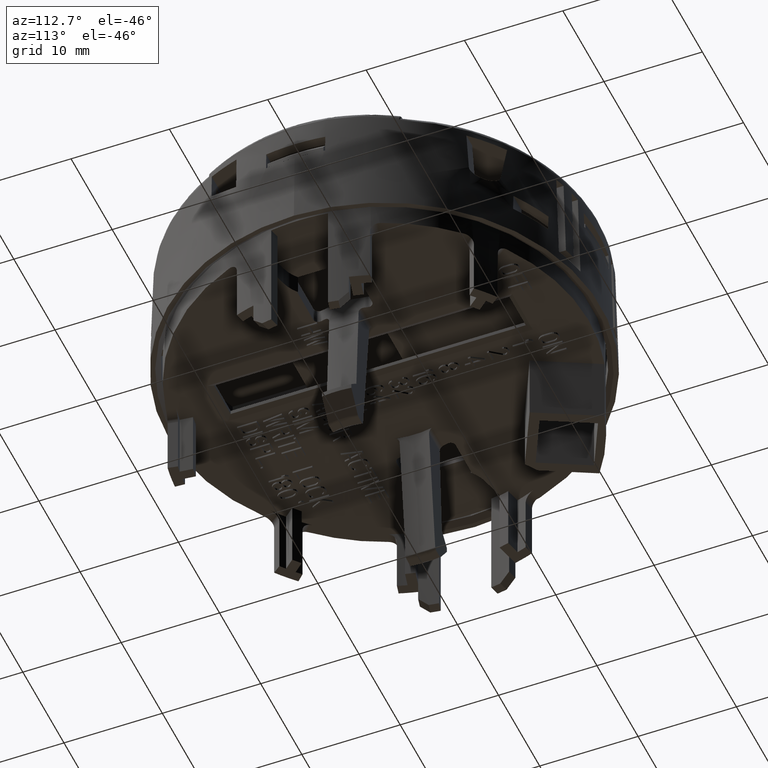
[diagram: clean part render]
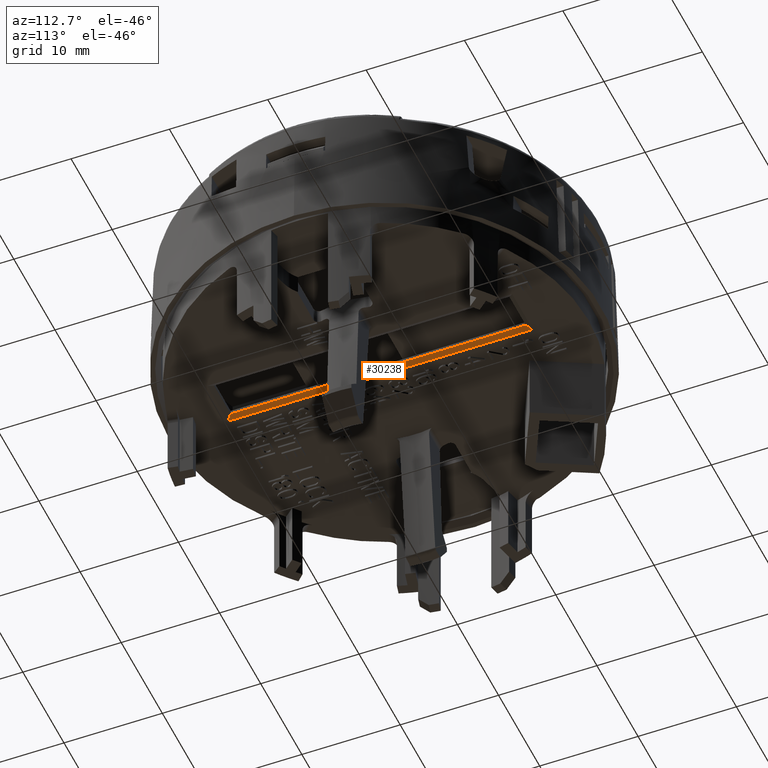
[diagram: same view with one face highlighted and labeled with its STEP entity id]
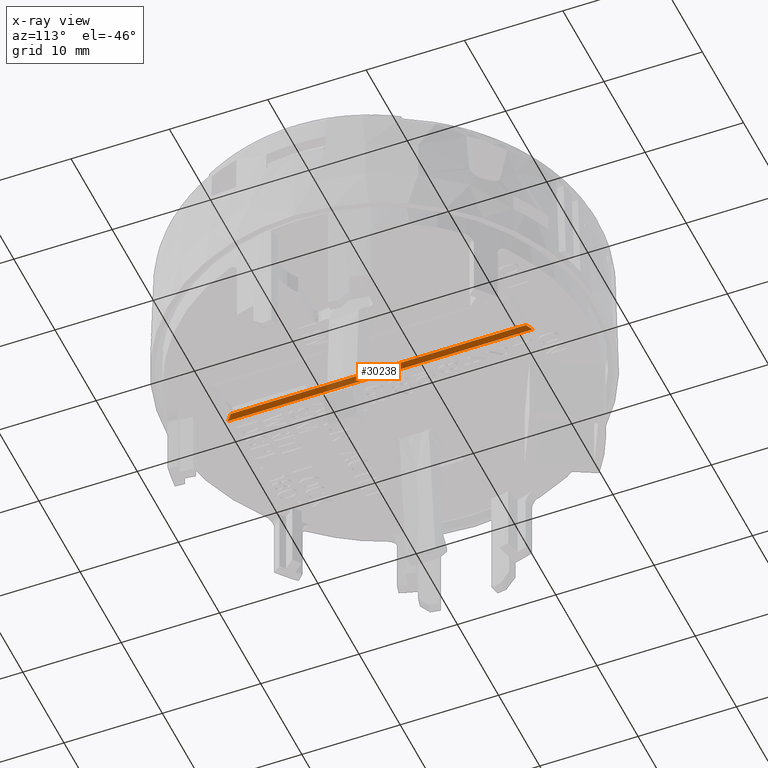
[diagram: x-ray of the same camera — body ghosted, the highlighted face saturated]
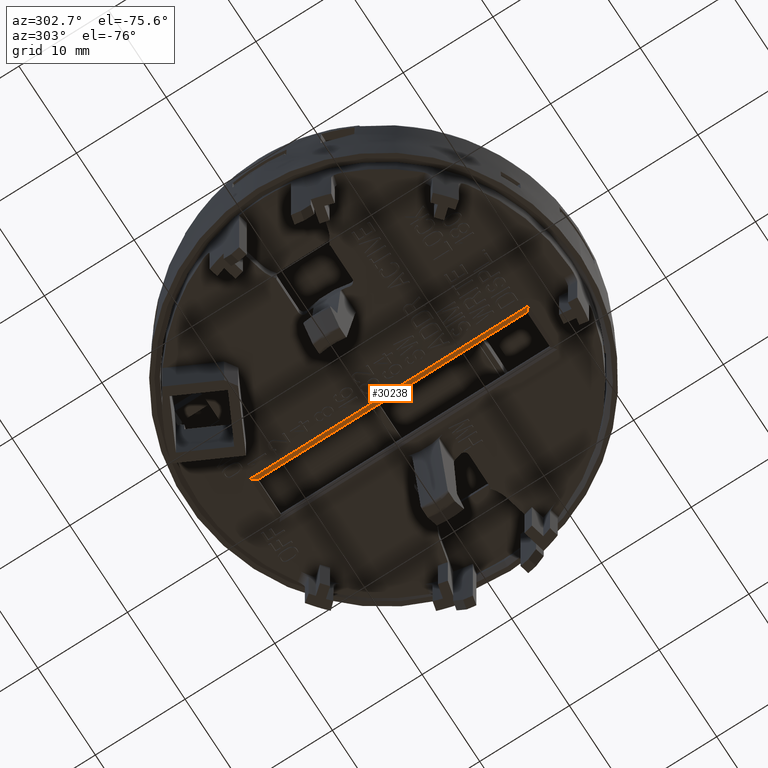
[diagram: same view with one face highlighted and labeled with its STEP entity id]
A machine part, auxiliary view. The second image highlights one B-rep face of the part: STEP entity #30238.
The next image is the same camera in x-ray: the body ghosted, the highlighted face saturated — about 13% of this face is hidden behind the body in this view.
A second angle (auxiliary view) of the same face is appended — the face is thin or edge-on in the first view.
In plain terms, the highlighted planar face has unit normal (0.5145, 0, -0.8575).
Its self-contained STEP definition (entity closure, byte-faithful):
#160 = VERTEX_POINT ( 'NONE', #5332 ) ;
#1589 = LINE ( 'NONE', #65601, #41863 ) ;
#2758 = DIRECTION ( 'NONE',  ( 0.5144957554275270128, 0.000000000000000000, -0.8574929257125438742 ) ) ;
#3859 = DIRECTION ( 'NONE',  ( 0.000000000000000000, -1.000000000000000000, 0.000000000000000000 ) ) ;
#5332 = CARTESIAN_POINT ( 'NONE',  ( -0.04921259842519685318, 0.6102362204724409711, -0.1771653543307086520 ) ) ;
#11528 = CARTESIAN_POINT ( 'NONE',  ( -0.02952755905511811330, -0.5905511811023621549, -0.1653543307086614012 ) ) ;
#13071 = CARTESIAN_POINT ( 'NONE',  ( -0.04921259842519685318, -0.6102362204724409711, -0.1771653543307086520 ) ) ;
#15955 = LINE ( 'NONE', #48666, #52765 ) ;
#16437 = VECTOR ( 'NONE', #68244, 39.37007874015748854 ) ;
#19164 = CARTESIAN_POINT ( 'NONE',  ( -0.04921259842519685318, 0.000000000000000000, -0.1771653543307086520 ) ) ;
#19441 = PLANE ( 'NONE',  #32590 ) ;
#21804 = ORIENTED_EDGE ( 'NONE', *, *, #22534, .T. ) ;
#22249 = VERTEX_POINT ( 'NONE', #22742 ) ;
#22376 = EDGE_CURVE ( 'NONE', #23501, #32117, #46223, .T. ) ;
#22534 = EDGE_CURVE ( 'NONE', #160, #22249, #15955, .T. ) ;
#22742 = CARTESIAN_POINT ( 'NONE',  ( -0.02952755905511811330, 0.5905511811023621549, -0.1653543307086614012 ) ) ;
#23501 = VERTEX_POINT ( 'NONE', #11528 ) ;
#29369 = VECTOR ( 'NONE', #3859, 39.37007874015748143 ) ;
#30153 = LINE ( 'NONE', #19164, #29369 ) ;
#30238 = ADVANCED_FACE ( 'NONE', ( #35432 ), #19441, .T. ) ;
#32117 = VERTEX_POINT ( 'NONE', #13071 ) ;
#32590 = AXIS2_PLACEMENT_3D ( 'NONE', #62122, #2758, #57484 ) ;
#35432 = FACE_OUTER_BOUND ( 'NONE', #57478, .T. ) ;
#37851 = EDGE_CURVE ( 'NONE', #160, #32117, #30153, .T. ) ;
#38334 = DIRECTION ( 'NONE',  ( 0.6509445549041188439, -0.6509445549041198431, 0.3905667329424714618 ) ) ;
#41863 = VECTOR ( 'NONE', #54896, 39.37007874015748143 ) ;
#43754 = ORIENTED_EDGE ( 'NONE', *, *, #37851, .F. ) ;
#46223 = LINE ( 'NONE', #57921, #16437 ) ;
#48666 = CARTESIAN_POINT ( 'NONE',  ( -0.04921259842519685318, 0.6102362204724409711, -0.1771653543307086520 ) ) ;
#49342 = ORIENTED_EDGE ( 'NONE', *, *, #22376, .T. ) ;
#52765 = VECTOR ( 'NONE', #38334, 39.37007874015748854 ) ;
#53369 = EDGE_CURVE ( 'NONE', #22249, #23501, #1589, .T. ) ;
#54896 = DIRECTION ( 'NONE',  ( 0.000000000000000000, -1.000000000000000000, 0.000000000000000000 ) ) ;
#57478 = EDGE_LOOP ( 'NONE', ( #49342, #43754, #21804, #59435 ) ) ;
#57484 = DIRECTION ( 'NONE',  ( 0.8574929257125438742, 0.000000000000000000, 0.5144957554275270128 ) ) ;
#57921 = CARTESIAN_POINT ( 'NONE',  ( -0.02952755905511811330, -0.5905511811023621549, -0.1653543307086614012 ) ) ;
#59435 = ORIENTED_EDGE ( 'NONE', *, *, #53369, .T. ) ;
#62122 = CARTESIAN_POINT ( 'NONE',  ( -0.03937007874015747977, 0.000000000000000000, -0.1712598425196850405 ) ) ;
#65601 = CARTESIAN_POINT ( 'NONE',  ( -0.02952755905511811330, 0.000000000000000000, -0.1653543307086614012 ) ) ;
#68244 = DIRECTION ( 'NONE',  ( -0.6509445549041188439, -0.6509445549041198431, -0.3905667329424714618 ) ) ;